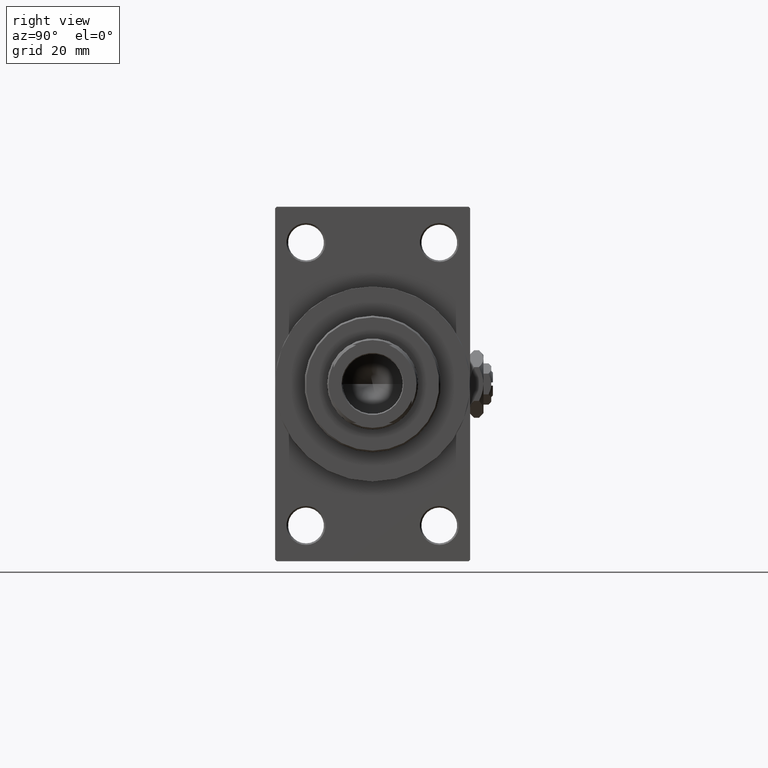
[diagram: clean part render]
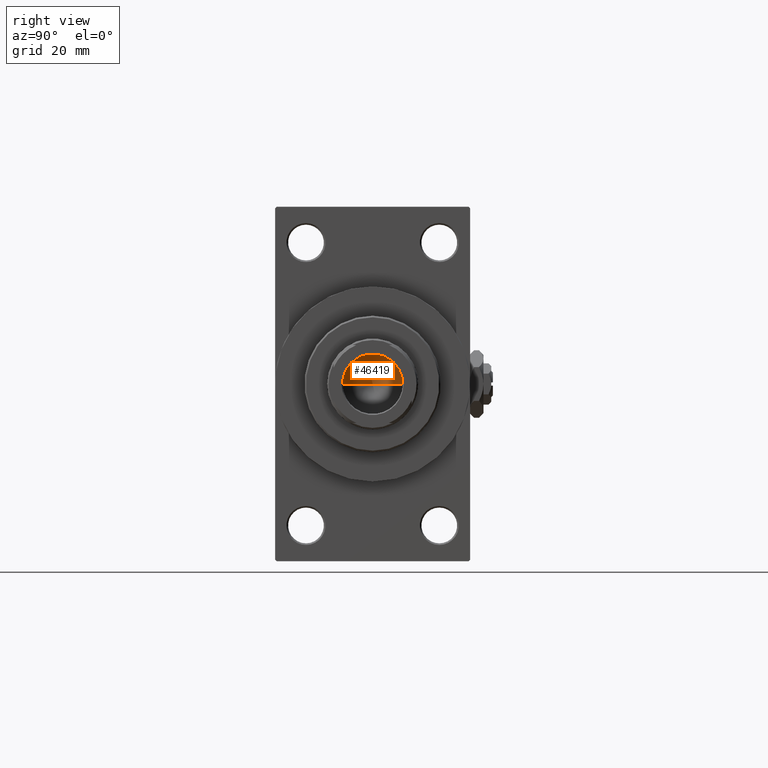
[diagram: same view with one face highlighted and labeled with its STEP entity id]
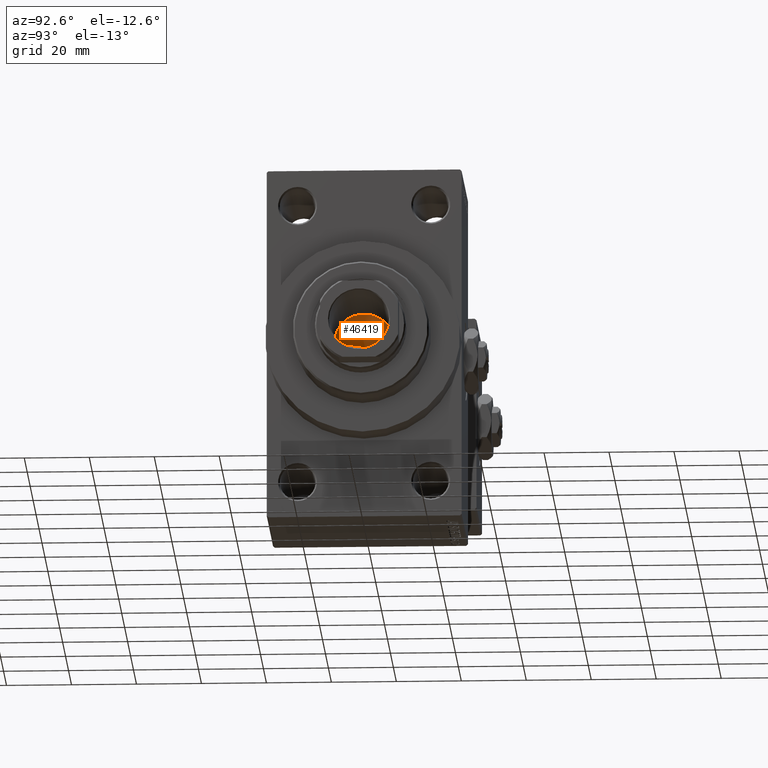
[diagram: same view with one face highlighted and labeled with its STEP entity id]
A machine part, right view. The second image highlights one B-rep face of the part: STEP entity #46419.
A second angle (auxiliary view) of the same face is appended — the face is thin or edge-on in the first view.
In plain terms, the highlighted conical surface has half-angle 59 deg.
Its self-contained STEP definition (entity closure, byte-faithful):
#7 = VERTEX_POINT ( 'NONE', #26647 ) ;
#865 = LINE ( 'NONE', #35229, #47287 ) ;
#4342 = ORIENTED_EDGE ( 'NONE', *, *, #37020, .F. ) ;
#4348 = ORIENTED_EDGE ( 'NONE', *, *, #7708, .T. ) ;
#6765 = VERTEX_POINT ( 'NONE', #49081 ) ;
#7708 = EDGE_CURVE ( 'NONE', #9694, #7, #865, .T. ) ;
#8251 = EDGE_CURVE ( 'NONE', #7, #6765, #31365, .T. ) ;
#9694 = VERTEX_POINT ( 'NONE', #18842 ) ;
#9949 = DIRECTION ( 'NONE',  ( 1.000000000000000000, 0.000000000000000000, 0.000000000000000000 ) ) ;
#13460 = VECTOR ( 'NONE', #34819, 1000.000000000000000 ) ;
#14189 = DIRECTION ( 'NONE',  ( -0.000000000000000000, -0.000000000000000000, 1.000000000000000000 ) ) ;
#14703 = AXIS2_PLACEMENT_3D ( 'NONE', #44334, #14189, #9949 ) ;
#14966 = ORIENTED_EDGE ( 'NONE', *, *, #8251, .T. ) ;
#16068 = DIRECTION ( 'NONE',  ( -0.8571673007021117785, 1.049727191138617956E-16, 0.5150380749100550437 ) ) ;
#18842 = CARTESIAN_POINT ( 'NONE',  ( -9.769621978240258809E-15, 0.000000000000000000, 95.44203927399506426 ) ) ;
#22173 = EDGE_LOOP ( 'NONE', ( #4342, #4348, #14966 ) ) ;
#23118 = CARTESIAN_POINT ( 'NONE',  ( 9.249999999999992895, 0.000000000000000000, 101.0000000000000000 ) ) ;
#26647 = CARTESIAN_POINT ( 'NONE',  ( -9.249999999999992895, 1.132798289211300712E-15, 101.0000000000000000 ) ) ;
#29089 = CARTESIAN_POINT ( 'NONE',  ( 0.000000000000000000, 0.000000000000000000, 101.0000000000000000 ) ) ;
#31365 = CIRCLE ( 'NONE', #14703, 9.249999999999992895 ) ;
#34819 = DIRECTION ( 'NONE',  ( 0.8571673007021117785, 0.000000000000000000, 0.5150380749100550437 ) ) ;
#35229 = CARTESIAN_POINT ( 'NONE',  ( -9.249999999999992895, 1.132798289211300712E-15, 101.0000000000000000 ) ) ;
#37020 = EDGE_CURVE ( 'NONE', #9694, #6765, #41562, .T. ) ;
#41562 = LINE ( 'NONE', #23118, #13460 ) ;
#44294 = DIRECTION ( 'NONE',  ( 1.000000000000000000, 0.000000000000000000, 0.000000000000000000 ) ) ;
#44334 = CARTESIAN_POINT ( 'NONE',  ( 0.000000000000000000, 0.000000000000000000, 101.0000000000000000 ) ) ;
#46419 = ADVANCED_FACE ( 'NONE', ( #48286 ), #46621, .F. ) ;
#46621 = CONICAL_SURFACE ( 'NONE', #47403, 9.249999999999992895, 1.029744258676653423 ) ;
#47287 = VECTOR ( 'NONE', #16068, 1000.000000000000000 ) ;
#47403 = AXIS2_PLACEMENT_3D ( 'NONE', #29089, #47546, #44294 ) ;
#47546 = DIRECTION ( 'NONE',  ( -0.000000000000000000, -0.000000000000000000, 1.000000000000000000 ) ) ;
#48286 = FACE_OUTER_BOUND ( 'NONE', #22173, .T. ) ;
#49081 = CARTESIAN_POINT ( 'NONE',  ( 9.249999999999992895, 0.000000000000000000, 101.0000000000000000 ) ) ;